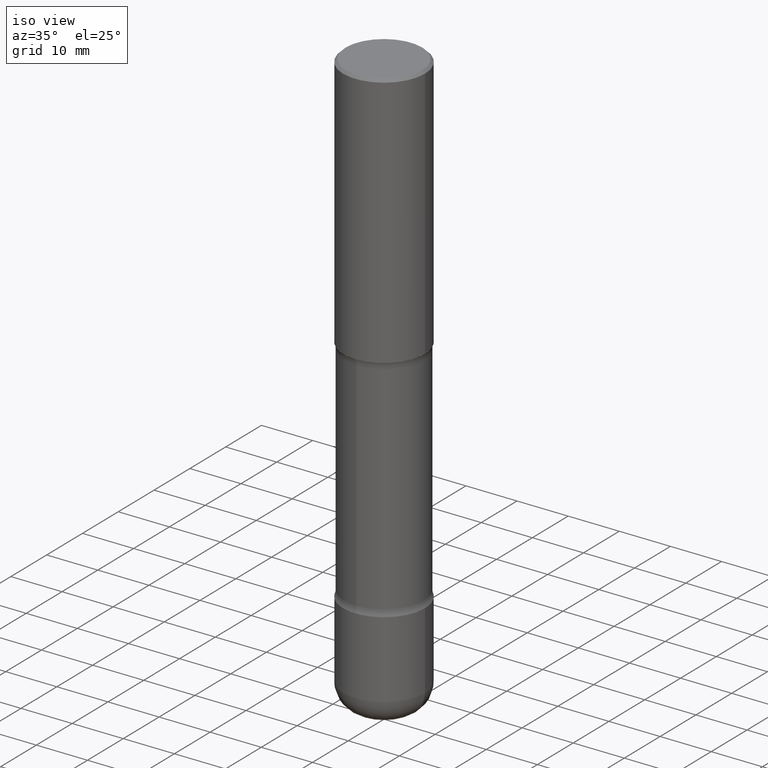
[diagram: clean part render]
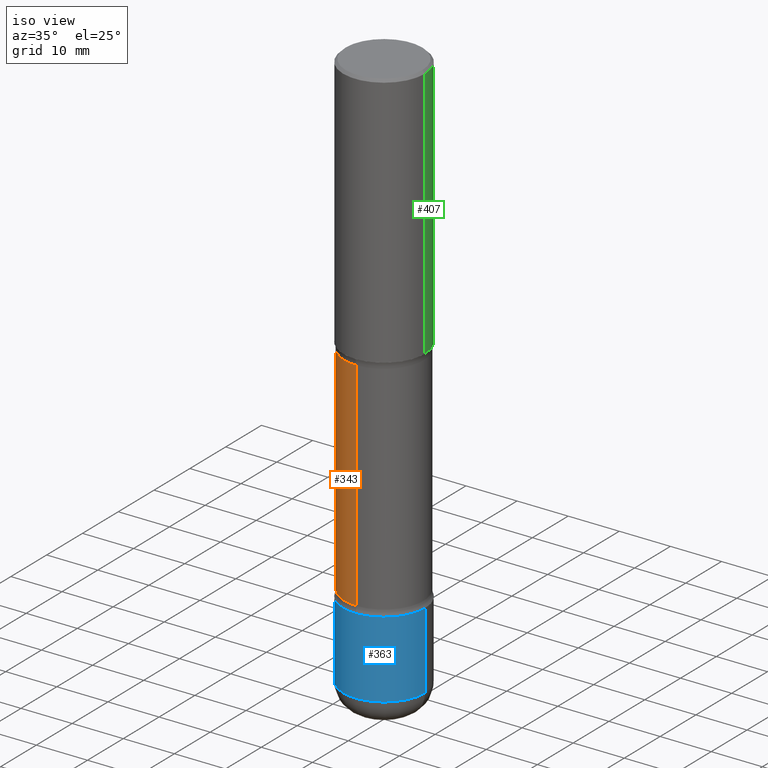
[diagram: same view with three faces highlighted in distinct colors, each labeled with its STEP entity id]
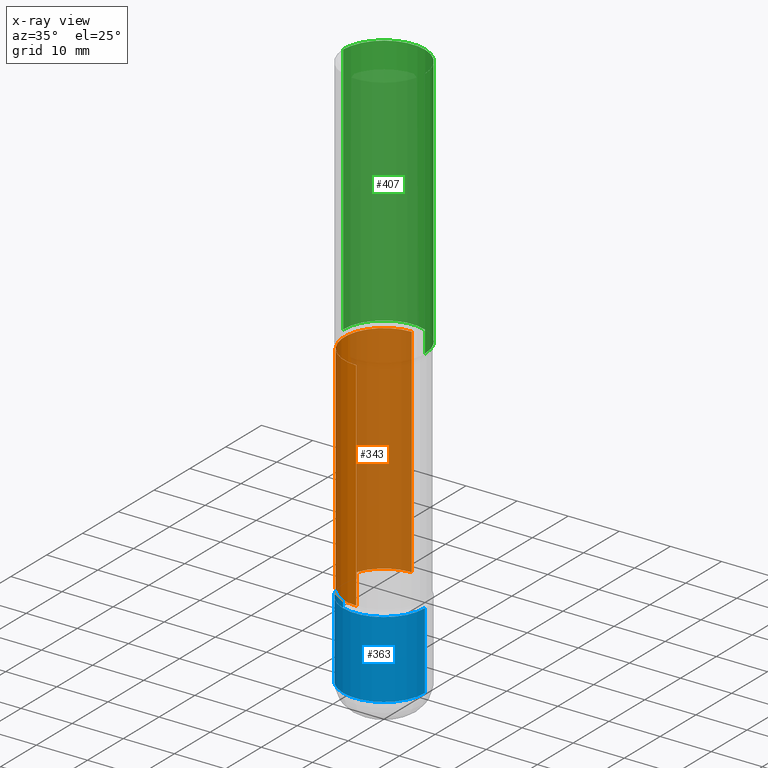
[diagram: x-ray of the same camera — body ghosted, the three highlighted faces saturated]
A machine part, iso view with three faces highlighted in distinct colors.
The next image is the same camera in x-ray (body ghosted, the three faces saturated) — at least one of them is partly hidden behind the body in this view.
Their STEP definitions:

[orange] entity #343 — the highlighted cylindrical surface (partial cylindrical patch) has radius 7.747 mm, axis along (0, -0, -1).
#2 = VERTEX_POINT ( 'NONE', #418 ) ;
#4 = EDGE_CURVE ( 'NONE', #214, #2, #13, .T. ) ;
#13 = LINE ( 'NONE', #535, #199 ) ;
#16 = EDGE_CURVE ( 'NONE', #102, #214, #537, .T. ) ;
#51 = ORIENTED_EDGE ( 'NONE', *, *, #16, .T. ) ;
#53 = EDGE_CURVE ( 'NONE', #102, #414, #425, .T. ) ;
#58 = CARTESIAN_POINT ( 'NONE',  ( 1.112212721578861617E-28, -1.573639562940220266E-14, -4.527600000000000513 ) ) ;
#75 = DIRECTION ( 'NONE',  ( 6.982962677686266711E-15, 1.000000000000000000, -3.582751467100674095E-15 ) ) ;
#87 = CIRCLE ( 'NONE', #403, 0.3049999999999998823 ) ;
#102 = VERTEX_POINT ( 'NONE', #338 ) ;
#133 = EDGE_CURVE ( 'NONE', #414, #2, #87, .T. ) ;
#139 = ORIENTED_EDGE ( 'NONE', *, *, #4, .T. ) ;
#149 = EDGE_LOOP ( 'NONE', ( #409, #51, #139, #482 ) ) ;
#199 = VECTOR ( 'NONE', #318, 39.37007874015748143 ) ;
#214 = VERTEX_POINT ( 'NONE', #266 ) ;
#222 = DIRECTION ( 'NONE',  ( 6.982962677686266711E-15, 1.000000000000000000, -3.582751467100674095E-15 ) ) ;
#227 = DIRECTION ( 'NONE',  ( 2.508997697352003204E-29, -3.400504350852260021E-15, -1.000000000000000000 ) ) ;
#245 = DIRECTION ( 'NONE',  ( 2.508997697352003204E-29, -3.400504350852260021E-15, -1.000000000000000000 ) ) ;
#266 = CARTESIAN_POINT ( 'NONE',  ( 2.129803616694359388E-15, 0.3049999999999927769, -2.017372256956275756 ) ) ;
#302 = AXIS2_PLACEMENT_3D ( 'NONE', #58, #496, #222 ) ;
#318 = DIRECTION ( 'NONE',  ( 2.508997697352003204E-29, -3.400504350852260021E-15, -1.000000000000000000 ) ) ;
#338 = CARTESIAN_POINT ( 'NONE',  ( -2.126582866859184041E-15, -0.3050000000000072098, -2.017372256956273535 ) ) ;
#341 = CARTESIAN_POINT ( 'NONE',  ( 9.023922048725964423E-29, -1.289264818112535948E-14, -3.691327743043727239 ) ) ;
#343 = ADVANCED_FACE ( 'NONE', ( #451 ), #361, .T. ) ;
#361 = CYLINDRICAL_SURFACE ( 'NONE', #302, 0.3049999999999999378 ) ;
#367 = VECTOR ( 'NONE', #245, 39.37007874015748143 ) ;
#384 = DIRECTION ( 'NONE',  ( 6.982962677686266711E-15, 1.000000000000000000, -3.582751467100673306E-15 ) ) ;
#403 = AXIS2_PLACEMENT_3D ( 'NONE', #341, #461, #75 ) ;
#404 = CARTESIAN_POINT ( 'NONE',  ( -2.126582866859139076E-15, -0.3050000000000128164, -3.691327743043726350 ) ) ;
#409 = ORIENTED_EDGE ( 'NONE', *, *, #53, .F. ) ;
#414 = VERTEX_POINT ( 'NONE', #404 ) ;
#418 = CARTESIAN_POINT ( 'NONE',  ( 2.129803616694400804E-15, 0.3049999999999870037, -3.691327743043728571 ) ) ;
#425 = LINE ( 'NONE', #556, #367 ) ;
#451 = FACE_OUTER_BOUND ( 'NONE', #149, .T. ) ;
#461 = DIRECTION ( 'NONE',  ( 2.508997697352003204E-29, -3.400504350852260021E-15, -1.000000000000000000 ) ) ;
#482 = ORIENTED_EDGE ( 'NONE', *, *, #133, .F. ) ;
#490 = CARTESIAN_POINT ( 'NONE',  ( 4.823971588662791399E-29, -7.200355267551965208E-15, -2.017372256956274423 ) ) ;
#496 = DIRECTION ( 'NONE',  ( 2.508997697352003204E-29, -3.400504350852260021E-15, -1.000000000000000000 ) ) ;
#515 = AXIS2_PLACEMENT_3D ( 'NONE', #490, #227, #384 ) ;
#535 = CARTESIAN_POINT ( 'NONE',  ( 2.129803616694422103E-15, 0.3049999999999842282, -4.527600000000001401 ) ) ;
#537 = CIRCLE ( 'NONE', #515, 0.3049999999999999933 ) ;
#556 = CARTESIAN_POINT ( 'NONE',  ( -2.092451889320205392E-15, -0.3050000000000157030, -4.527599999999998737 ) ) ;

[blue] entity #363 — the highlighted cylindrical surface (partial cylindrical patch) has radius 7.9997 mm, axis along (-0, 0, 1).
#10 = DIRECTION ( 'NONE',  ( 1.000000000000000000, -6.982962677686267499E-15, 4.876176775795936353E-29 ) ) ;
#25 = CARTESIAN_POINT ( 'NONE',  ( -0.3149500000000002853, 2.237854346276437562E-15, -1.549218606675783797E-29 ) ) ;
#34 = CARTESIAN_POINT ( 'NONE',  ( 0.3149500000000002298, -1.525812259887842581E-14, -3.740200000000000635 ) ) ;
#47 = EDGE_CURVE ( 'NONE', #56, #546, #150, .T. ) ;
#56 = VERTEX_POINT ( 'NONE', #163 ) ;
#63 = CYLINDRICAL_SURFACE ( 'NONE', #204, 0.3149500000000002853 ) ;
#86 = DIRECTION ( 'NONE',  ( 1.000000000000000000, -6.982962677686263555E-15, 0.000000000000000000 ) ) ;
#120 = DIRECTION ( 'NONE',  ( -2.445468806185136597E-29, 3.491481338843145583E-15, 1.000000000000000000 ) ) ;
#123 = EDGE_CURVE ( 'NONE', #134, #541, #344, .T. ) ;
#130 = EDGE_CURVE ( 'NONE', #541, #546, #514, .T. ) ;
#134 = VERTEX_POINT ( 'NONE', #238 ) ;
#150 = CIRCLE ( 'NONE', #463, 0.3149500000000002298 ) ;
#151 = AXIS2_PLACEMENT_3D ( 'NONE', #419, #203, #86 ) ;
#163 = CARTESIAN_POINT ( 'NONE',  ( -0.3149500000000002298, -1.185184402255813765E-14, -3.740200000000000635 ) ) ;
#189 = CARTESIAN_POINT ( 'NONE',  ( 0.000000000000000000, 0.000000000000000000, 0.000000000000000000 ) ) ;
#203 = DIRECTION ( 'NONE',  ( -2.445468806185136597E-29, 3.491481338843145583E-15, 1.000000000000000000 ) ) ;
#204 = AXIS2_PLACEMENT_3D ( 'NONE', #189, #543, #10 ) ;
#230 = EDGE_LOOP ( 'NONE', ( #236, #398, #478, #452 ) ) ;
#236 = ORIENTED_EDGE ( 'NONE', *, *, #424, .F. ) ;
#238 = CARTESIAN_POINT ( 'NONE',  ( -0.3149500000000003408, -1.288270388785157535E-14, -4.330700000000000216 ) ) ;
#242 = CARTESIAN_POINT ( 'NONE',  ( 0.3149500000000002853, -2.199284095337291843E-15, 1.535751875536931531E-29 ) ) ;
#286 = DIRECTION ( 'NONE',  ( -2.445468806185136877E-29, 3.491481338843145188E-15, 1.000000000000000000 ) ) ;
#298 = DIRECTION ( 'NONE',  ( 1.000000000000000000, -6.982962677686264344E-15, 0.000000000000000000 ) ) ;
#317 = FACE_OUTER_BOUND ( 'NONE', #230, .T. ) ;
#344 = CIRCLE ( 'NONE', #151, 0.3149500000000002853 ) ;
#363 = ADVANCED_FACE ( 'NONE', ( #317 ), #63, .T. ) ;
#398 = ORIENTED_EDGE ( 'NONE', *, *, #123, .T. ) ;
#416 = LINE ( 'NONE', #25, #511 ) ;
#419 = CARTESIAN_POINT ( 'NONE',  ( 1.059059175894597327E-28, -1.512055823412801291E-14, -4.330700000000000216 ) ) ;
#423 = CARTESIAN_POINT ( 'NONE',  ( 0.3149500000000003408, -1.731984232946530752E-14, -4.330700000000000216 ) ) ;
#424 = EDGE_CURVE ( 'NONE', #134, #56, #416, .T. ) ;
#452 = ORIENTED_EDGE ( 'NONE', *, *, #47, .F. ) ;
#463 = AXIS2_PLACEMENT_3D ( 'NONE', #464, #120, #298 ) ;
#464 = CARTESIAN_POINT ( 'NONE',  ( 9.146542428893650504E-29, -1.305883850354113594E-14, -3.740200000000000635 ) ) ;
#478 = ORIENTED_EDGE ( 'NONE', *, *, #130, .T. ) ;
#511 = VECTOR ( 'NONE', #528, 39.37007874015748143 ) ;
#514 = LINE ( 'NONE', #242, #516 ) ;
#516 = VECTOR ( 'NONE', #286, 39.37007874015748143 ) ;
#528 = DIRECTION ( 'NONE',  ( -2.445468806185136877E-29, 3.491481338843145188E-15, 1.000000000000000000 ) ) ;
#541 = VERTEX_POINT ( 'NONE', #423 ) ;
#543 = DIRECTION ( 'NONE',  ( -2.445468806185136597E-29, 3.491481338843145583E-15, 1.000000000000000000 ) ) ;
#546 = VERTEX_POINT ( 'NONE', #34 ) ;

[green] entity #407 — the highlighted cylindrical surface (partial cylindrical patch) has radius 7.9997 mm, axis along (-0, 0, 1).
#41 = EDGE_CURVE ( 'NONE', #118, #146, #76, .T. ) ;
#49 = EDGE_LOOP ( 'NONE', ( #360, #450, #458, #196 ) ) ;
#68 = CARTESIAN_POINT ( 'NONE',  ( 0.000000000000000000, 0.000000000000000000, 0.000000000000000000 ) ) ;
#76 = CIRCLE ( 'NONE', #349, 0.3149500000000001743 ) ;
#80 = CARTESIAN_POINT ( 'NONE',  ( 0.3149499999999998967, -2.230543471175006266E-15, -0.02000000000000006981 ) ) ;
#118 = VERTEX_POINT ( 'NONE', #507 ) ;
#135 = VERTEX_POINT ( 'NONE', #202 ) ;
#142 = VERTEX_POINT ( 'NONE', #80 ) ;
#146 = VERTEX_POINT ( 'NONE', #382 ) ;
#176 = EDGE_CURVE ( 'NONE', #118, #142, #206, .T. ) ;
#196 = ORIENTED_EDGE ( 'NONE', *, *, #176, .F. ) ;
#202 = CARTESIAN_POINT ( 'NONE',  ( -0.3149499999999998967, 2.129454468560425784E-15, -0.02000000000000006981 ) ) ;
#206 = LINE ( 'NONE', #520, #270 ) ;
#221 = EDGE_CURVE ( 'NONE', #146, #135, #260, .T. ) ;
#233 = AXIS2_PLACEMENT_3D ( 'NONE', #468, #503, #545 ) ;
#235 = DIRECTION ( 'NONE',  ( 1.000000000000000000, -6.982962677686266711E-15, 4.876176775795936353E-29 ) ) ;
#260 = LINE ( 'NONE', #518, #380 ) ;
#270 = VECTOR ( 'NONE', #359, 39.37007874015748143 ) ;
#279 = FACE_OUTER_BOUND ( 'NONE', #49, .T. ) ;
#315 = DIRECTION ( 'NONE',  ( -2.445468806185136597E-29, 3.491481338843145583E-15, 1.000000000000000000 ) ) ;
#349 = AXIS2_PLACEMENT_3D ( 'NONE', #379, #549, #554 ) ;
#359 = DIRECTION ( 'NONE',  ( -2.445468806185136877E-29, 3.491481338843145188E-15, 1.000000000000000000 ) ) ;
#360 = ORIENTED_EDGE ( 'NONE', *, *, #41, .T. ) ;
#379 = CARTESIAN_POINT ( 'NONE',  ( 4.813905344975441835E-29, -6.872981015512731707E-15, -1.968500000000000139 ) ) ;
#380 = VECTOR ( 'NONE', #440, 39.37007874015748143 ) ;
#382 = CARTESIAN_POINT ( 'NONE',  ( -0.3149500000000001743, -1.233550974868359743E-15, -1.968500000000000139 ) ) ;
#395 = AXIS2_PLACEMENT_3D ( 'NONE', #68, #315, #235 ) ;
#407 = ADVANCED_FACE ( 'NONE', ( #279 ), #455, .T. ) ;
#440 = DIRECTION ( 'NONE',  ( -2.445468806185136877E-29, 3.491481338843145188E-15, 1.000000000000000000 ) ) ;
#450 = ORIENTED_EDGE ( 'NONE', *, *, #221, .T. ) ;
#455 = CYLINDRICAL_SURFACE ( 'NONE', #395, 0.3149500000000000077 ) ;
#458 = ORIENTED_EDGE ( 'NONE', *, *, #542, .F. ) ;
#468 = CARTESIAN_POINT ( 'NONE',  ( 4.890937612370289799E-31, -6.982962677686315028E-17, -0.02000000000000006981 ) ) ;
#503 = DIRECTION ( 'NONE',  ( -2.445468806185136597E-29, 3.491481338843145583E-15, 1.000000000000000000 ) ) ;
#507 = CARTESIAN_POINT ( 'NONE',  ( 0.3149500000000001743, -9.072265110850023156E-15, -1.968500000000000139 ) ) ;
#518 = CARTESIAN_POINT ( 'NONE',  ( -0.3149500000000000077, 2.237854346276435590E-15, -1.549218606675782676E-29 ) ) ;
#520 = CARTESIAN_POINT ( 'NONE',  ( 0.3149500000000000077, -2.199284095337289871E-15, 1.535751875536930130E-29 ) ) ;
#527 = CIRCLE ( 'NONE', #233, 0.3149499999999998967 ) ;
#542 = EDGE_CURVE ( 'NONE', #142, #135, #527, .T. ) ;
#545 = DIRECTION ( 'NONE',  ( 1.000000000000000000, -6.982962677686265922E-15, 0.000000000000000000 ) ) ;
#549 = DIRECTION ( 'NONE',  ( -2.445468806185136597E-29, 3.491481338843145583E-15, 1.000000000000000000 ) ) ;
#554 = DIRECTION ( 'NONE',  ( 1.000000000000000000, -6.982962677686269866E-15, 0.000000000000000000 ) ) ;